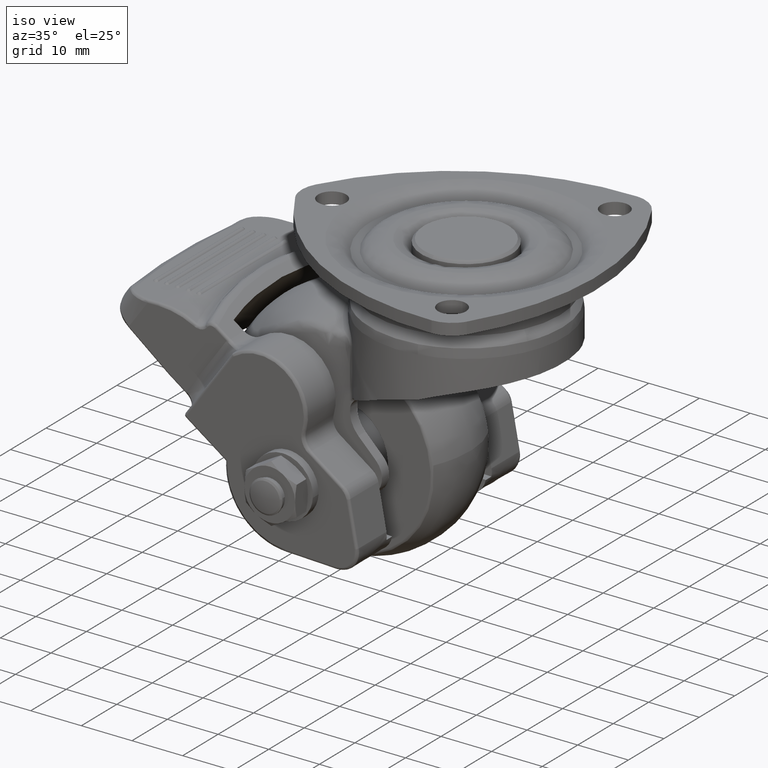
[diagram: clean part render]
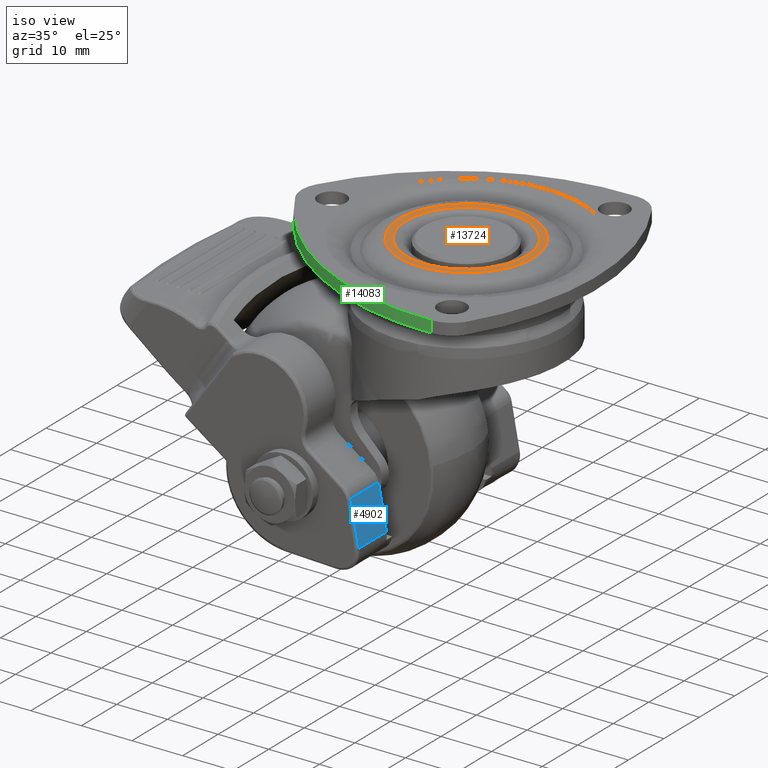
[diagram: same view with three faces highlighted in distinct colors, each labeled with its STEP entity id]
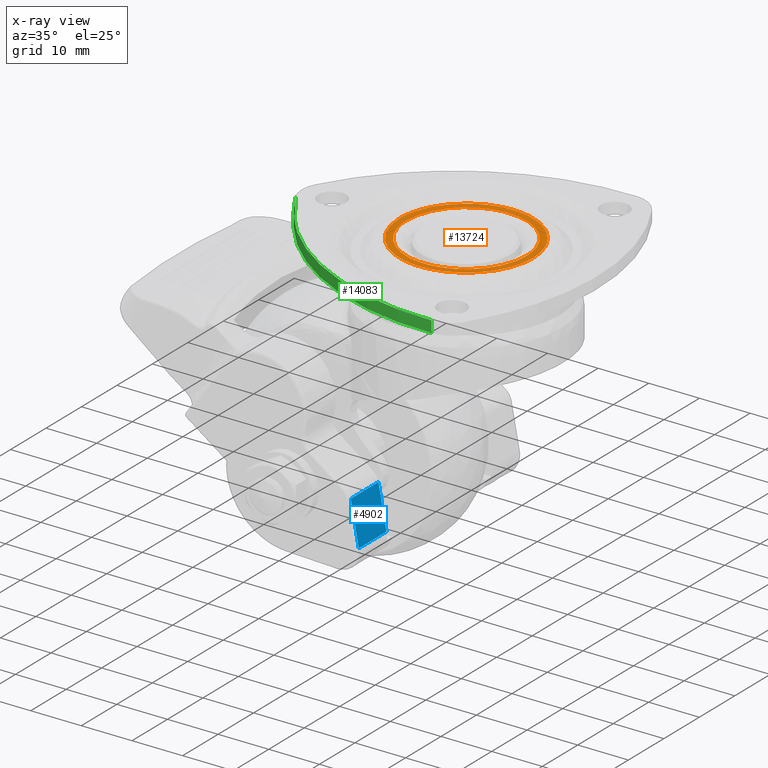
[diagram: x-ray of the same camera — body ghosted, the three highlighted faces saturated]
A machine part, iso view with three faces highlighted in distinct colors.
The next image is the same camera in x-ray (body ghosted, the three faces saturated) — at least one of them is partly hidden behind the body in this view.
Their STEP definitions:

[orange] entity #13724 — the highlighted face is a freeform B-spline surface patch.
#12669=CARTESIAN_POINT('',(-11.849064373578649,-0.148907572766453,-4.398953E-016));
#12670=VERTEX_POINT('',#12669);
#12684=CARTESIAN_POINT('',(11.850000000000000,0.0,0.0));
#12685=VERTEX_POINT('',#12684);
#12686=CARTESIAN_POINT('',(11.850000000000000,0.0,0.0));
#12687=CARTESIAN_POINT('',(11.850000000000000,-11.850000000000000,0.0));
#12688=CARTESIAN_POINT('',(0.0,-11.850000000000000,0.0));
#12689=CARTESIAN_POINT('',(-11.702016369102028,-11.850000000000001,0.0));
#12690=CARTESIAN_POINT('',(-11.849064373578649,-0.148907572766453,-4.398953E-016));
#12698=(BOUNDED_CURVE()B_SPLINE_CURVE(2,(#12686,#12687,#12688,#12689,#12690),.UNSPECIFIED.,.F.,.U.)B_SPLINE_CURVE_WITH_KNOTS((3,2,3),(0.500000000000000,0.750000000000000,0.997784295917225),.UNSPECIFIED.)CURVE()GEOMETRIC_REPRESENTATION_ITEM()RATIONAL_B_SPLINE_CURVE((1.0,0.707106781186547,1.0,0.709702639989516,0.994854295633648))REPRESENTATION_ITEM(''));
#12699=EDGE_CURVE('',#12685,#12670,#12698,.T.);
#12701=CARTESIAN_POINT('',(-0.826339031256628,11.821153234868710,-4.500181E-016));
#12702=VERTEX_POINT('',#12701);
#12703=CARTESIAN_POINT('',(-0.826339031256628,11.821153234868710,-4.500181E-016));
#12704=CARTESIAN_POINT('',(-0.413673023212668,11.850000000000003,0.0));
#12705=CARTESIAN_POINT('',(0.0,11.850000000000000,0.0));
#12706=CARTESIAN_POINT('',(11.850000000000000,11.850000000000000,0.0));
#12707=CARTESIAN_POINT('',(11.850000000000000,0.0,0.0));
#12715=(BOUNDED_CURVE()B_SPLINE_CURVE(2,(#12703,#12704,#12705,#12706,#12707),.UNSPECIFIED.,.F.,.U.)B_SPLINE_CURVE_WITH_KNOTS((3,2,3),(0.237833686532313,0.250000000000000,0.500000000000000),.UNSPECIFIED.)CURVE()GEOMETRIC_REPRESENTATION_ITEM()RATIONAL_B_SPLINE_CURVE((0.972879876381098,0.985746277149422,1.0,0.707106781186547,1.0))REPRESENTATION_ITEM(''));
#12716=EDGE_CURVE('',#12702,#12685,#12715,.T.);
#12753=CARTESIAN_POINT('',(-11.850000000000000,0.0,0.0));
#12754=VERTEX_POINT('',#12753);
#12755=CARTESIAN_POINT('',(-11.850000000000000,0.0,0.0));
#12756=CARTESIAN_POINT('',(-11.850000000000000,11.050561639927684,0.0));
#12757=CARTESIAN_POINT('',(-0.826339031256628,11.821153234868710,-4.500181E-016));
#12765=(BOUNDED_CURVE()B_SPLINE_CURVE(2,(#12755,#12756,#12757),.UNSPECIFIED.,.F.,.U.)B_SPLINE_CURVE_WITH_KNOTS((3,3),(0.0,0.237833686532313),.UNSPECIFIED.)CURVE()GEOMETRIC_REPRESENTATION_ITEM()RATIONAL_B_SPLINE_CURVE((1.0,0.721360504037125,0.972879876381098))REPRESENTATION_ITEM(''));
#12766=EDGE_CURVE('',#12754,#12702,#12765,.T.);
#12768=CARTESIAN_POINT('',(-11.849064373578649,-0.148907572766452,-4.398953E-016));
#12769=CARTESIAN_POINT('',(-11.850000000000001,-0.074456725855585,0.0));
#12770=CARTESIAN_POINT('',(-11.850000000000000,0.0,0.0));
#12778=(BOUNDED_CURVE()B_SPLINE_CURVE(2,(#12768,#12769,#12770),.UNSPECIFIED.,.F.,.U.)B_SPLINE_CURVE_WITH_KNOTS((3,3),(0.997784295917226,1.0),.UNSPECIFIED.)CURVE()GEOMETRIC_REPRESENTATION_ITEM()RATIONAL_B_SPLINE_CURVE((0.994854295633650,0.997404141197033,1.0))REPRESENTATION_ITEM(''));
#12779=EDGE_CURVE('',#12670,#12754,#12778,.T.);
#13023=CARTESIAN_POINT('',(-7.623573243703121,10.775131914200500,-9.719018E-016));
#13024=VERTEX_POINT('',#13023);
#13025=CARTESIAN_POINT('',(-13.199330919542421,0.0,0.0));
#13026=VERTEX_POINT('',#13025);
#13027=CARTESIAN_POINT('',(-7.623573243703121,10.775131914200498,-9.719018E-016));
#13028=CARTESIAN_POINT('',(-13.199330919542422,6.830196725121429,0.0));
#13029=CARTESIAN_POINT('',(-13.199330919542421,0.0,0.0));
#13037=(BOUNDED_CURVE()B_SPLINE_CURVE(2,(#13027,#13028,#13029),.UNSPECIFIED.,.F.,.U.)B_SPLINE_CURVE_WITH_KNOTS((3,3),(0.849340826591417,1.0),.UNSPECIFIED.)CURVE()GEOMETRIC_REPRESENTATION_ITEM()RATIONAL_B_SPLINE_CURVE((0.859724235320905,0.823491799026344,1.0))REPRESENTATION_ITEM(''));
#13038=EDGE_CURVE('',#13024,#13026,#13037,.T.);
#13102=CARTESIAN_POINT('',(10.775131914200500,7.623573243703121,-1.032646E-015));
#13103=VERTEX_POINT('',#13102);
#13117=CARTESIAN_POINT('',(13.199330919542421,0.0,0.0));
#13118=VERTEX_POINT('',#13117);
#13119=CARTESIAN_POINT('',(13.199330919542421,0.0,0.0));
#13120=CARTESIAN_POINT('',(13.199330919542424,4.197218795897705,0.0));
#13121=CARTESIAN_POINT('',(10.775131914200498,7.623573243703122,-1.032646E-015));
#13129=(BOUNDED_CURVE()B_SPLINE_CURVE(2,(#13119,#13120,#13121),.UNSPECIFIED.,.F.,.U.)B_SPLINE_CURVE_WITH_KNOTS((3,3),(0.500000000000000,0.599340826591416),.UNSPECIFIED.)CURVE()GEOMETRIC_REPRESENTATION_ITEM()RATIONAL_B_SPLINE_CURVE((1.0,0.883614982160204,0.859724235320905))REPRESENTATION_ITEM(''));
#13130=EDGE_CURVE('',#13118,#13103,#13129,.T.);
#13132=CARTESIAN_POINT('',(-13.199330919542421,0.0,0.0));
#13133=CARTESIAN_POINT('',(-13.199330919542419,-13.199330919542419,0.0));
#13134=CARTESIAN_POINT('',(0.0,-13.199330919542421,0.0));
#13135=CARTESIAN_POINT('',(13.199330919542419,-13.199330919542419,0.0));
#13136=CARTESIAN_POINT('',(13.199330919542421,0.0,0.0));
#13144=(BOUNDED_CURVE()B_SPLINE_CURVE(2,(#13132,#13133,#13134,#13135,#13136),.UNSPECIFIED.,.F.,.U.)B_SPLINE_CURVE_WITH_KNOTS((3,2,3),(0.0,0.250000000000000,0.500000000000000),.UNSPECIFIED.)CURVE()GEOMETRIC_REPRESENTATION_ITEM()RATIONAL_B_SPLINE_CURVE((1.0,0.707106781186547,1.0,0.707106781186547,1.0))REPRESENTATION_ITEM(''));
#13145=EDGE_CURVE('',#13026,#13118,#13144,.T.);
#13167=CARTESIAN_POINT('',(10.775131914200498,7.623573243703121,-1.032646E-015));
#13168=CARTESIAN_POINT('',(6.830196725121429,13.199330919542422,0.0));
#13169=CARTESIAN_POINT('',(0.0,13.199330919542421,0.0));
#13170=CARTESIAN_POINT('',(-4.197218795897668,13.199330919542422,0.0));
#13171=CARTESIAN_POINT('',(-7.623573243703121,10.775131914200498,-9.719018E-016));
#13179=(BOUNDED_CURVE()B_SPLINE_CURVE(2,(#13167,#13168,#13169,#13170,#13171),.UNSPECIFIED.,.F.,.U.)B_SPLINE_CURVE_WITH_KNOTS((3,2,3),(0.599340826591417,0.750000000000000,0.849340826591416),.UNSPECIFIED.)CURVE()GEOMETRIC_REPRESENTATION_ITEM()RATIONAL_B_SPLINE_CURVE((0.859724235320905,0.823491799026344,1.0,0.883614982160205,0.859724235320905))REPRESENTATION_ITEM(''));
#13180=EDGE_CURVE('',#13103,#13024,#13179,.T.);
#13707=CARTESIAN_POINT('',(-14.517944522862480,14.516850938656940,0.0));
#13708=CARTESIAN_POINT('',(14.517944758884910,14.516850938656940,0.0));
#13709=CARTESIAN_POINT('',(-14.517944522862480,-14.517892733018490,0.0));
#13710=CARTESIAN_POINT('',(14.517944758884910,-14.517892733018490,0.0));
#13711=B_SPLINE_SURFACE_WITH_KNOTS('',1,1,((#13707,#13709),(#13708,#13710)),.UNSPECIFIED.,.F.,.F.,.U.,(2,2),(2,2),(0.0,29.035889281747380),(0.0,29.034743671675429),.UNSPECIFIED.);
#13712=ORIENTED_EDGE('',*,*,#13145,.T.);
#13713=ORIENTED_EDGE('',*,*,#13130,.T.);
#13714=ORIENTED_EDGE('',*,*,#13180,.T.);
#13715=ORIENTED_EDGE('',*,*,#13038,.T.);
#13716=EDGE_LOOP('',(#13712,#13713,#13714,#13715));
#13717=FACE_OUTER_BOUND('',#13716,.T.);
#13718=ORIENTED_EDGE('',*,*,#12699,.T.);
#13719=ORIENTED_EDGE('',*,*,#12779,.T.);
#13720=ORIENTED_EDGE('',*,*,#12766,.T.);
#13721=ORIENTED_EDGE('',*,*,#12716,.T.);
#13722=EDGE_LOOP('',(#13718,#13719,#13720,#13721));
#13723=FACE_BOUND('',#13722,.T.);
#13724=ADVANCED_FACE('',(#13717,#13723),#13711,.F.);

[blue] entity #4902 — the highlighted face is a freeform B-spline surface patch.
#4463=CARTESIAN_POINT('',(-5.411661699069570,-22.600000000000001,-48.161289105385301));
#4464=VERTEX_POINT('',#4463);
#4602=CARTESIAN_POINT('',(-6.998045024302170,-22.600000000000001,-39.735062079038997));
#4603=VERTEX_POINT('',#4602);
#4623=CARTESIAN_POINT('',(-5.411661699069570,-22.600000000000001,-48.161289105385301));
#4624=CARTESIAN_POINT('',(-6.998045024302170,-22.600000000000001,-39.735062079038997));
#4625=QUASI_UNIFORM_CURVE('',1,(#4623,#4624),.UNSPECIFIED.,.F.,.U.);
#4626=EDGE_CURVE('',#4464,#4603,#4625,.T.);
#4875=CARTESIAN_POINT('',(-7.077284957673807,-22.989610396339920,-39.314171580808313));
#4876=CARTESIAN_POINT('',(-5.332421808248046,-22.989610396339920,-48.582179377606963));
#4877=CARTESIAN_POINT('',(-7.077284957673807,-14.410390370771850,-39.314171580808313));
#4878=CARTESIAN_POINT('',(-5.332421808248046,-14.410390370771850,-48.582179377606963));
#4879=B_SPLINE_SURFACE_WITH_KNOTS('',1,1,((#4875,#4877),(#4876,#4878)),.UNSPECIFIED.,.F.,.F.,.U.,(2,2),(2,2),(0.0,9.430827955791822),(0.0,8.579220025568070),.UNSPECIFIED.);
#4880=CARTESIAN_POINT('',(-5.411661699069570,-14.800000000000001,-48.161289105385301));
#4881=VERTEX_POINT('',#4880);
#4882=CARTESIAN_POINT('',(-5.411661699069570,-22.600000000000001,-48.161289105385301));
#4883=CARTESIAN_POINT('',(-5.411661699069570,-14.800000000000001,-48.161289105385301));
#4884=QUASI_UNIFORM_CURVE('',1,(#4882,#4883),.UNSPECIFIED.,.F.,.U.);
#4885=EDGE_CURVE('',#4464,#4881,#4884,.T.);
#4886=ORIENTED_EDGE('',*,*,#4885,.T.);
#4887=CARTESIAN_POINT('',(-6.998045024302170,-14.800000000000001,-39.735062079038997));
#4888=VERTEX_POINT('',#4887);
#4889=CARTESIAN_POINT('',(-6.998045024302170,-14.800000000000001,-39.735062079038997));
#4890=CARTESIAN_POINT('',(-5.411661699069570,-14.800000000000001,-48.161289105385301));
#4891=QUASI_UNIFORM_CURVE('',1,(#4889,#4890),.UNSPECIFIED.,.F.,.U.);
#4892=EDGE_CURVE('',#4888,#4881,#4891,.T.);
#4893=ORIENTED_EDGE('',*,*,#4892,.F.);
#4894=CARTESIAN_POINT('',(-6.998045024302170,-22.600000000000001,-39.735062079038997));
#4895=CARTESIAN_POINT('',(-6.998045024302170,-14.800000000000001,-39.735062079038997));
#4896=QUASI_UNIFORM_CURVE('',1,(#4894,#4895),.UNSPECIFIED.,.F.,.U.);
#4897=EDGE_CURVE('',#4603,#4888,#4896,.T.);
#4898=ORIENTED_EDGE('',*,*,#4897,.F.);
#4899=ORIENTED_EDGE('',*,*,#4626,.F.);
#4900=EDGE_LOOP('',(#4886,#4893,#4898,#4899));
#4901=FACE_OUTER_BOUND('',#4900,.T.);
#4902=ADVANCED_FACE('',(#4901),#4879,.T.);

[green] entity #14083 — the highlighted face is a freeform B-spline surface patch.
#13798=CARTESIAN_POINT('',(-31.769828012035550,-2.868608150926780,0.0));
#13799=VERTEX_POINT('',#13798);
#13813=CARTESIAN_POINT('',(13.400626615101540,-28.947781728843250,0.0));
#13814=VERTEX_POINT('',#13813);
#13815=CARTESIAN_POINT('',(-31.769828012035550,-2.868608150926780,0.0));
#13816=CARTESIAN_POINT('',(-17.156038600813027,-29.715130692859464,0.0));
#13817=CARTESIAN_POINT('',(13.400626615101521,-28.947781728843150,0.0));
#13825=(BOUNDED_CURVE()B_SPLINE_CURVE(2,(#13815,#13816,#13817),.UNSPECIFIED.,.F.,.U.)CURVE()GEOMETRIC_REPRESENTATION_ITEM()QUASI_UNIFORM_CURVE()RATIONAL_B_SPLINE_CURVE((1.0,0.853200255966014,1.0))REPRESENTATION_ITEM(''));
#13826=EDGE_CURVE('',#13799,#13814,#13825,.T.);
#13920=CARTESIAN_POINT('',(13.400626615101540,-28.947781728843250,-2.300000000000080));
#13921=VERTEX_POINT('',#13920);
#13935=CARTESIAN_POINT('',(-31.769828012035550,-2.868608150926780,-2.300000000000080));
#13936=VERTEX_POINT('',#13935);
#13937=CARTESIAN_POINT('',(-31.769828012035550,-2.868608150926780,-2.300000000000080));
#13938=CARTESIAN_POINT('',(-17.156038600813027,-29.715130692859464,-2.300000000000080));
#13939=CARTESIAN_POINT('',(13.400626615101521,-28.947781728843150,-2.300000000000080));
#13947=(BOUNDED_CURVE()B_SPLINE_CURVE(2,(#13937,#13938,#13939),.UNSPECIFIED.,.F.,.U.)CURVE()GEOMETRIC_REPRESENTATION_ITEM()QUASI_UNIFORM_CURVE()RATIONAL_B_SPLINE_CURVE((1.0,0.853200255966014,1.0))REPRESENTATION_ITEM(''));
#13948=EDGE_CURVE('',#13936,#13921,#13947,.T.);
#14049=CARTESIAN_POINT('',(13.400626615101540,-28.947781728843250,-2.300000000000080));
#14050=CARTESIAN_POINT('',(13.400626615101540,-28.947781728843250,0.0));
#14051=QUASI_UNIFORM_CURVE('',1,(#14049,#14050),.UNSPECIFIED.,.F.,.U.);
#14052=EDGE_CURVE('',#13921,#13814,#14051,.T.);
#14059=CARTESIAN_POINT('',(14.815773140376569,-28.892180471532939,-2.357500000000082));
#14060=CARTESIAN_POINT('',(14.815773140376569,-28.892180471532939,0.058937500000002));
#14061=CARTESIAN_POINT('',(-18.536007657984349,-30.675956249841189,-2.357500000000083));
#14062=CARTESIAN_POINT('',(-18.536007657984349,-30.675956249841189,0.058937500000002));
#14063=CARTESIAN_POINT('',(-32.955077728075238,-0.549330870237116,-2.357500000000083));
#14064=CARTESIAN_POINT('',(-32.955077728075238,-0.549330870237116,0.058937500000002));
#14072=(BOUNDED_SURFACE()B_SPLINE_SURFACE(1,2,((#14059,#14061,#14063),(#14060,#14062,#14064)),.UNSPECIFIED.,.F.,.F.,.U.)B_SPLINE_SURFACE_WITH_KNOTS((2,2),(3,3),(0.0,2.416437500000084),(0.0,60.654749902023788),.UNSPECIFIED.)GEOMETRIC_REPRESENTATION_ITEM()RATIONAL_B_SPLINE_SURFACE(((1.0,0.828214905589516,0.992012675170037),(1.0,0.828214905589516,0.992012675170037)))REPRESENTATION_ITEM('')SURFACE());
#14073=ORIENTED_EDGE('',*,*,#13826,.F.);
#14074=CARTESIAN_POINT('',(-31.769828012035550,-2.868608150926780,-2.300000000000080));
#14075=CARTESIAN_POINT('',(-31.769828012035550,-2.868608150926780,0.0));
#14076=QUASI_UNIFORM_CURVE('',1,(#14074,#14075),.UNSPECIFIED.,.F.,.U.);
#14077=EDGE_CURVE('',#13936,#13799,#14076,.T.);
#14078=ORIENTED_EDGE('',*,*,#14077,.F.);
#14079=ORIENTED_EDGE('',*,*,#13948,.T.);
#14080=ORIENTED_EDGE('',*,*,#14052,.T.);
#14081=EDGE_LOOP('',(#14073,#14078,#14079,#14080));
#14082=FACE_OUTER_BOUND('',#14081,.T.);
#14083=ADVANCED_FACE('',(#14082),#14072,.T.);